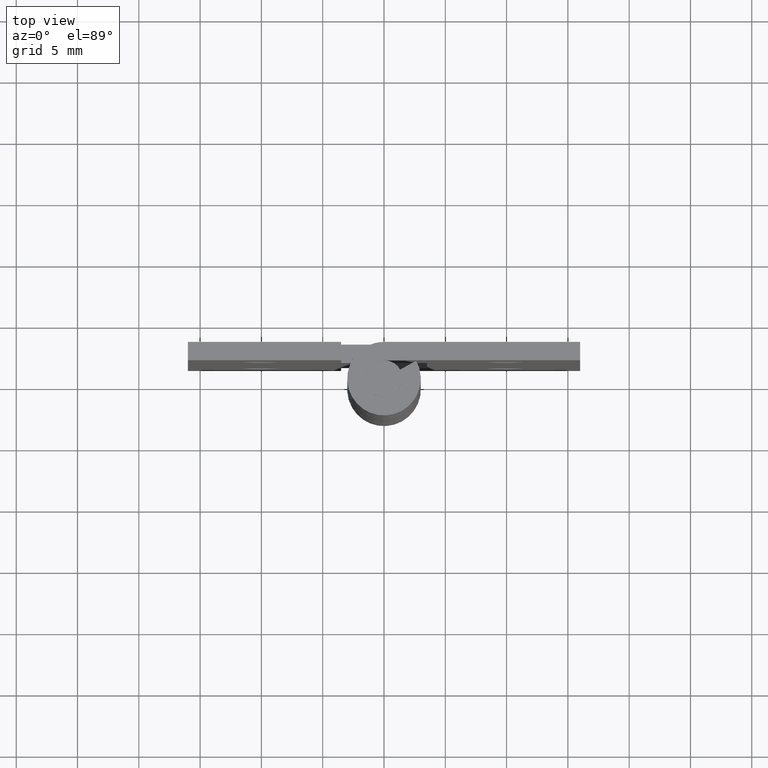
[diagram: clean part render]
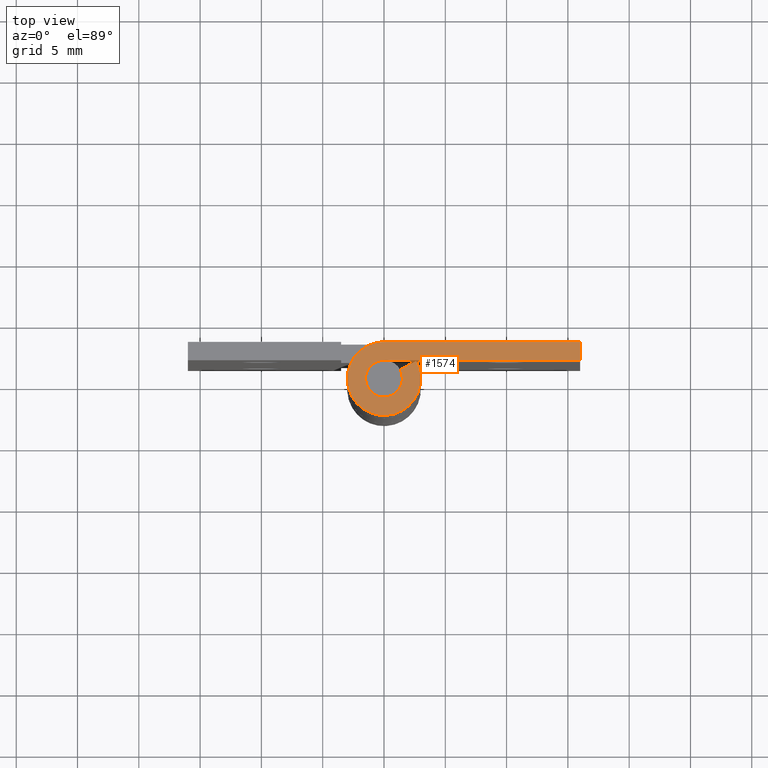
[diagram: same view with one face highlighted and labeled with its STEP entity id]
A machine part, top view. The second image highlights one B-rep face of the part: STEP entity #1574.
In plain terms, the highlighted face is a freeform B-spline surface patch.
Its self-contained STEP definition (entity closure, byte-faithful):
#1497=CARTESIAN_POINT('',(-3.948997893597384,-3.299492225269541,50.0));
#1498=CARTESIAN_POINT('',(16.949047995650670,-3.299492225269541,50.0));
#1499=CARTESIAN_POINT('',(-3.948997893597384,3.299690265240233,50.0));
#1500=CARTESIAN_POINT('',(16.949047995650670,3.299690265240233,50.0));
#1501=B_SPLINE_SURFACE_WITH_KNOTS('',1,1,((#1497,#1499),(#1498,#1500)),.UNSPECIFIED.,.F.,.F.,.U.,(2,2),(2,2),(0.0,20.898045889248049),(0.0,6.599182490509774),.UNSPECIFIED.);
#1502=CARTESIAN_POINT('',(1.313154598666890,0.725000000000000,50.0));
#1503=VERTEX_POINT('',#1502);
#1504=CARTESIAN_POINT('',(0.0,1.500000000000000,50.0));
#1505=VERTEX_POINT('',#1504);
#1506=CARTESIAN_POINT('',(1.313154598666890,0.725000000000000,50.0));
#1507=CARTESIAN_POINT('',(1.866715792252885,-0.277636451035838,50.000000000000007));
#1508=CARTESIAN_POINT('',(1.045325295443045,-1.075776476182162,50.0));
#1509=CARTESIAN_POINT('',(0.223934798633207,-1.873916501328486,50.000000000000007));
#1510=CARTESIAN_POINT('',(-0.762397534098844,-1.291801068276382,50.0));
#1511=CARTESIAN_POINT('',(-1.748729866830896,-0.709685635224277,50.000000000000007));
#1512=CARTESIAN_POINT('',(-1.447014444021651,0.395157182387861,50.0));
#1513=CARTESIAN_POINT('',(-1.145299021212405,1.500000000000000,50.000000000000007));
#1514=CARTESIAN_POINT('',(0.0,1.500000000000000,50.0));
#1522=(BOUNDED_CURVE()B_SPLINE_CURVE(2,(#1506,#1507,#1508,#1509,#1510,#1511,#1512,#1513,#1514),.UNSPECIFIED.,.F.,.U.)B_SPLINE_CURVE_WITH_KNOTS((3,2,2,2,3),(0.0,0.250000000000000,0.500000000000000,0.750000000000000,1.0),.UNSPECIFIED.)CURVE()GEOMETRIC_REPRESENTATION_ITEM()RATIONAL_B_SPLINE_CURVE((1.0,0.794807562115481,1.0,0.794807562115481,1.0,0.794807562115481,1.0,0.794807562115481,1.0))REPRESENTATION_ITEM(''));
#1523=EDGE_CURVE('',#1503,#1505,#1522,.T.);
#1524=ORIENTED_EDGE('',*,*,#1523,.T.);
#1525=CARTESIAN_POINT('',(16.0,1.500000000000000,50.0));
#1526=VERTEX_POINT('',#1525);
#1527=CARTESIAN_POINT('',(0.0,1.500000000000000,50.0));
#1528=CARTESIAN_POINT('',(16.0,1.500000000000000,50.0));
#1529=QUASI_UNIFORM_CURVE('',1,(#1527,#1528),.UNSPECIFIED.,.F.,.U.);
#1530=EDGE_CURVE('',#1505,#1526,#1529,.T.);
#1531=ORIENTED_EDGE('',*,*,#1530,.T.);
#1532=CARTESIAN_POINT('',(16.0,3.0,50.0));
#1533=VERTEX_POINT('',#1532);
#1534=CARTESIAN_POINT('',(16.0,1.500000000000000,50.0));
#1535=CARTESIAN_POINT('',(16.0,3.0,50.0));
#1536=QUASI_UNIFORM_CURVE('',1,(#1534,#1535),.UNSPECIFIED.,.F.,.U.);
#1537=EDGE_CURVE('',#1526,#1533,#1536,.T.);
#1538=ORIENTED_EDGE('',*,*,#1537,.T.);
#1539=CARTESIAN_POINT('',(0.0,3.0,50.0));
#1540=VERTEX_POINT('',#1539);
#1541=CARTESIAN_POINT('',(16.0,3.0,50.0));
#1542=CARTESIAN_POINT('',(0.0,3.0,50.0));
#1543=QUASI_UNIFORM_CURVE('',1,(#1541,#1542),.UNSPECIFIED.,.F.,.U.);
#1544=EDGE_CURVE('',#1533,#1540,#1543,.T.);
#1545=ORIENTED_EDGE('',*,*,#1544,.T.);
#1546=CARTESIAN_POINT('',(2.626309197333780,1.450000000000000,50.0));
#1547=VERTEX_POINT('',#1546);
#1548=CARTESIAN_POINT('',(2.626309197333780,1.450000000000000,50.0));
#1549=CARTESIAN_POINT('',(3.733431584505770,-0.555272902071675,50.000000000000007));
#1550=CARTESIAN_POINT('',(2.090650590886091,-2.151552952364324,50.0));
#1551=CARTESIAN_POINT('',(0.447869597266413,-3.747833002656972,50.000000000000007));
#1552=CARTESIAN_POINT('',(-1.524795068197689,-2.583602136552764,50.0));
#1553=CARTESIAN_POINT('',(-3.497459733661792,-1.419371270448555,50.000000000000007));
#1554=CARTESIAN_POINT('',(-2.894028888043301,0.790314364775722,50.0));
#1555=CARTESIAN_POINT('',(-2.290598042424809,3.000000000000000,50.000000000000007));
#1556=CARTESIAN_POINT('',(0.0,3.0,50.0));
#1564=(BOUNDED_CURVE()B_SPLINE_CURVE(2,(#1548,#1549,#1550,#1551,#1552,#1553,#1554,#1555,#1556),.UNSPECIFIED.,.F.,.U.)B_SPLINE_CURVE_WITH_KNOTS((3,2,2,2,3),(0.0,0.250000000000000,0.500000000000000,0.750000000000000,1.0),.UNSPECIFIED.)CURVE()GEOMETRIC_REPRESENTATION_ITEM()RATIONAL_B_SPLINE_CURVE((1.0,0.794807562115481,1.0,0.794807562115481,1.0,0.794807562115481,1.0,0.794807562115481,1.0))REPRESENTATION_ITEM(''));
#1565=EDGE_CURVE('',#1547,#1540,#1564,.T.);
#1566=ORIENTED_EDGE('',*,*,#1565,.F.);
#1567=CARTESIAN_POINT('',(2.626309197333780,1.450000000000000,50.0));
#1568=CARTESIAN_POINT('',(1.313154598666890,0.725000000000000,50.0));
#1569=QUASI_UNIFORM_CURVE('',1,(#1567,#1568),.UNSPECIFIED.,.F.,.U.);
#1570=EDGE_CURVE('',#1547,#1503,#1569,.T.);
#1571=ORIENTED_EDGE('',*,*,#1570,.T.);
#1572=EDGE_LOOP('',(#1524,#1531,#1538,#1545,#1566,#1571));
#1573=FACE_OUTER_BOUND('',#1572,.T.);
#1574=ADVANCED_FACE('',(#1573),#1501,.T.);